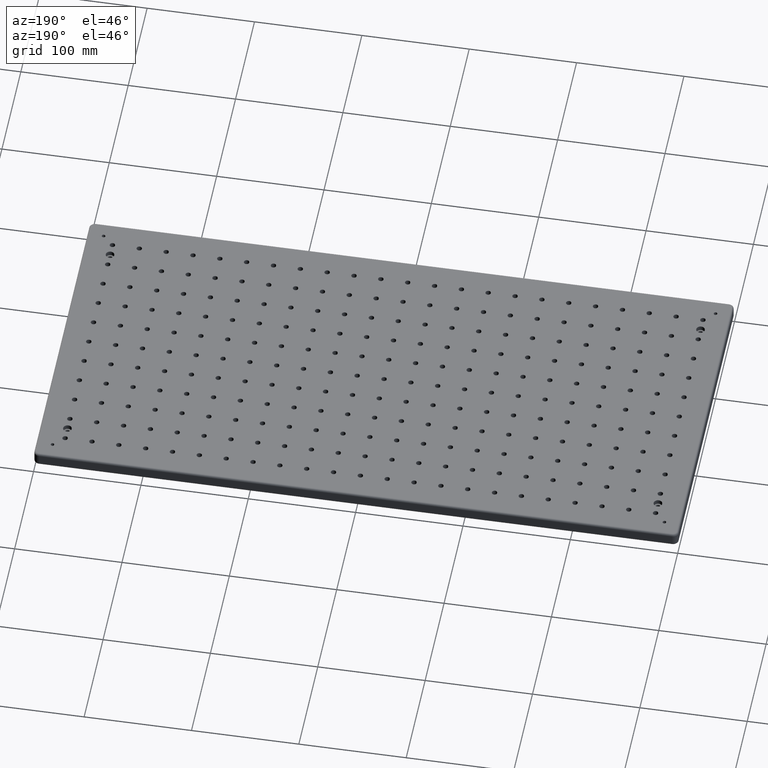
[diagram: clean part render]
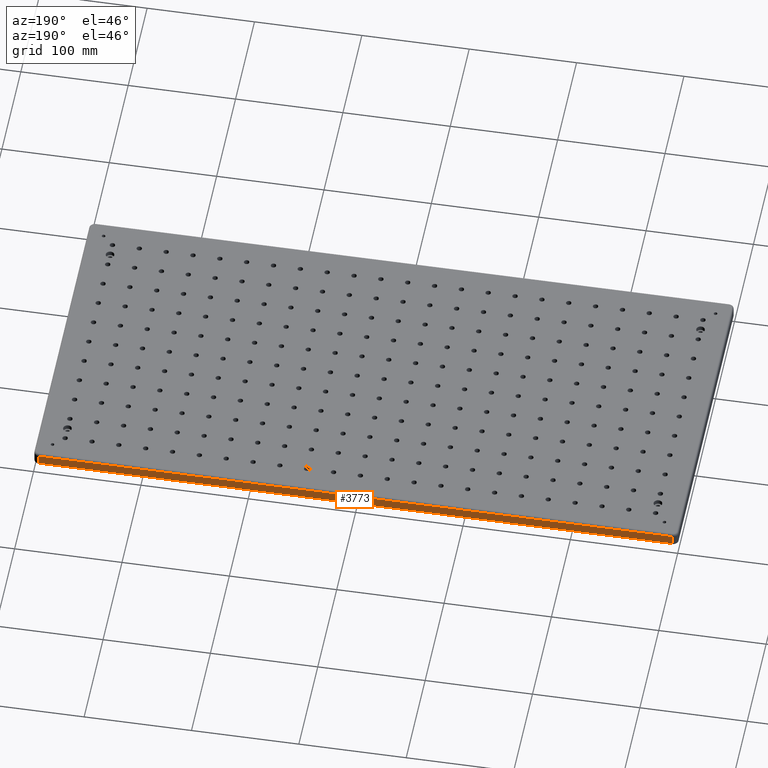
[diagram: same view with one face highlighted and labeled with its STEP entity id]
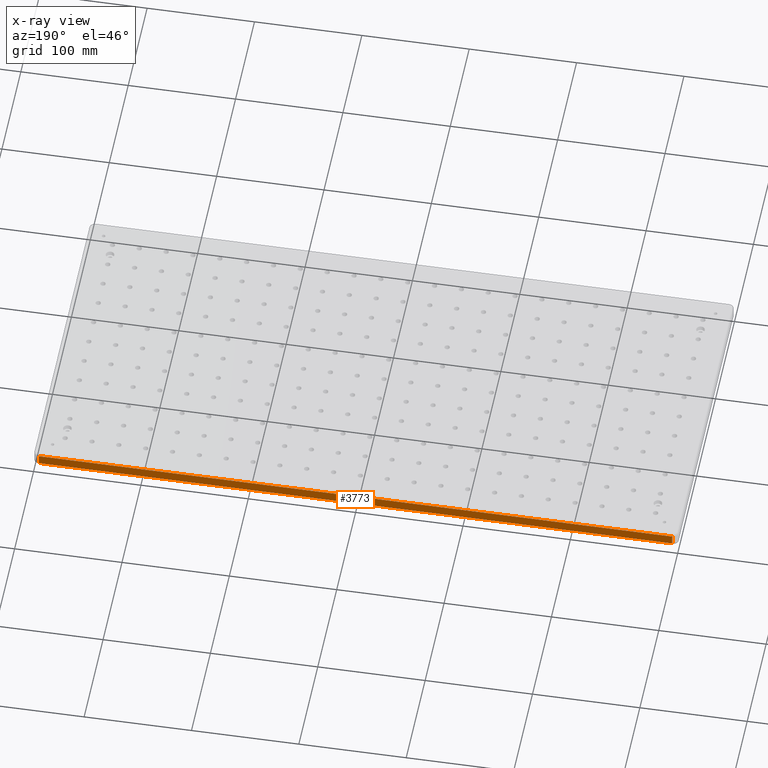
[diagram: x-ray of the same camera — body ghosted, the highlighted face saturated]
A machine part, auxiliary view. The second image highlights one B-rep face of the part: STEP entity #3773.
The next image is the same camera in x-ray: the body ghosted, the highlighted face saturated — about 0% of this face is hidden behind the body in this view.
In plain terms, the highlighted planar face has unit normal (0, 1, 0).
Its self-contained STEP definition (entity closure, byte-faithful):
#132 = DIRECTION ( 'NONE',  ( -1.000000000000000000, 0.0000000000000000000, 0.0000000000000000000 ) ) ;
#2020 = LINE ( 'NONE', #9475, #15056 ) ;
#2023 = EDGE_CURVE ( 'NONE', #9316, #18959, #13107, .T. ) ;
#2148 = ORIENTED_EDGE ( 'NONE', *, *, #2023, .T. ) ;
#2925 = DIRECTION ( 'NONE',  ( 0.0000000000000000000, 1.000000000000000000, 0.0000000000000000000 ) ) ;
#3773 = ADVANCED_FACE ( 'NONE', ( #13977 ), #7478, .T. ) ;
#3932 = EDGE_CURVE ( 'NONE', #12199, #20135, #14765, .T. ) ;
#4736 = EDGE_CURVE ( 'NONE', #18959, #12199, #7005, .T. ) ;
#5965 = DIRECTION ( 'NONE',  ( 0.0000000000000000000, -0.0000000000000000000, 1.000000000000000000 ) ) ;
#6636 = CARTESIAN_POINT ( 'NONE',  ( 595.0000000000000000, 300.0000000000000000, -11.00000000000000000 ) ) ;
#7005 = LINE ( 'NONE', #18159, #19332 ) ;
#7241 = VECTOR ( 'NONE', #11394, 1000.000000000000000 ) ;
#7478 = PLANE ( 'NONE',  #18084 ) ;
#7959 = CARTESIAN_POINT ( 'NONE',  ( 0.0000000000000000000, 300.0000000000000000, -11.00000000000000000 ) ) ;
#9316 = VERTEX_POINT ( 'NONE', #13747 ) ;
#9475 = CARTESIAN_POINT ( 'NONE',  ( 4.999999999999998200, 300.0000000000000000, -13.00000000000000000 ) ) ;
#9576 = VECTOR ( 'NONE', #132, 1000.000000000000000 ) ;
#11394 = DIRECTION ( 'NONE',  ( 1.000000000000000000, -0.0000000000000000000, 0.0000000000000000000 ) ) ;
#11487 = CARTESIAN_POINT ( 'NONE',  ( 595.0000000000000000, 300.0000000000000000, -2.000000000000000000 ) ) ;
#12199 = VERTEX_POINT ( 'NONE', #6636 ) ;
#12327 = CARTESIAN_POINT ( 'NONE',  ( 0.0000000000000000000, 300.0000000000000000, -13.00000000000000000 ) ) ;
#12342 = CARTESIAN_POINT ( 'NONE',  ( 4.999999999999998200, 300.0000000000000000, -11.00000000000000000 ) ) ;
#12903 = DIRECTION ( 'NONE',  ( 0.0000000000000000000, -0.0000000000000000000, 1.000000000000000000 ) ) ;
#13107 = LINE ( 'NONE', #19270, #7241 ) ;
#13691 = EDGE_CURVE ( 'NONE', #20135, #9316, #2020, .T. ) ;
#13747 = CARTESIAN_POINT ( 'NONE',  ( 4.999999999999998200, 300.0000000000000000, -2.000000000000000000 ) ) ;
#13977 = FACE_OUTER_BOUND ( 'NONE', #15667, .T. ) ;
#14765 = LINE ( 'NONE', #7959, #9576 ) ;
#14923 = DIRECTION ( 'NONE',  ( -0.0000000000000000000, 0.0000000000000000000, -1.000000000000000000 ) ) ;
#15056 = VECTOR ( 'NONE', #12903, 1000.000000000000000 ) ;
#15667 = EDGE_LOOP ( 'NONE', ( #16035, #18800, #16334, #2148 ) ) ;
#16035 = ORIENTED_EDGE ( 'NONE', *, *, #4736, .T. ) ;
#16334 = ORIENTED_EDGE ( 'NONE', *, *, #13691, .T. ) ;
#18084 = AXIS2_PLACEMENT_3D ( 'NONE', #12327, #2925, #5965 ) ;
#18159 = CARTESIAN_POINT ( 'NONE',  ( 595.0000000000000000, 300.0000000000000000, -13.00000000000000000 ) ) ;
#18800 = ORIENTED_EDGE ( 'NONE', *, *, #3932, .T. ) ;
#18959 = VERTEX_POINT ( 'NONE', #11487 ) ;
#19270 = CARTESIAN_POINT ( 'NONE',  ( 595.0000000000000000, 300.0000000000000000, -2.000000000000000000 ) ) ;
#19332 = VECTOR ( 'NONE', #14923, 1000.000000000000000 ) ;
#20135 = VERTEX_POINT ( 'NONE', #12342 ) ;